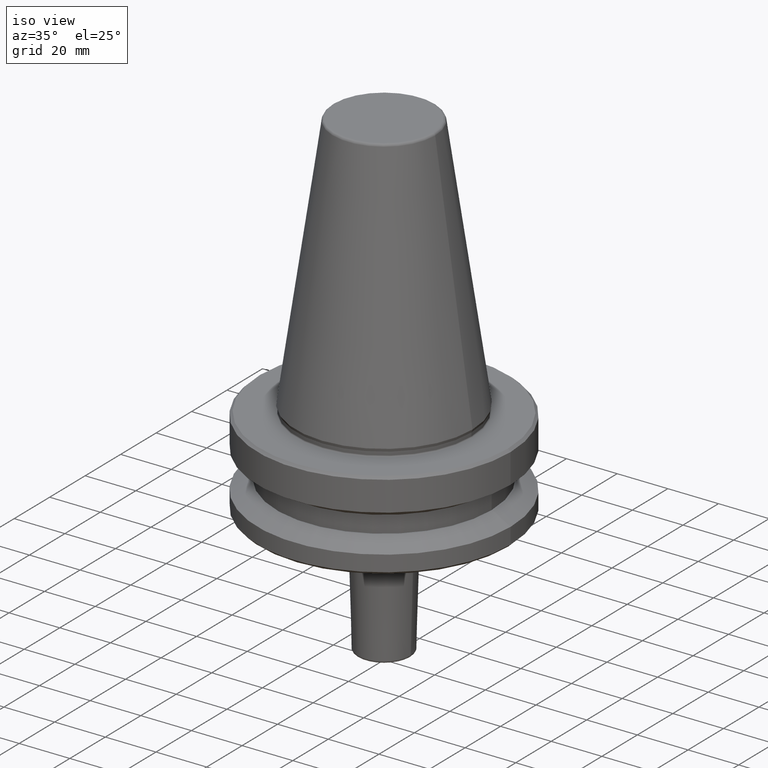
[diagram: clean part render]
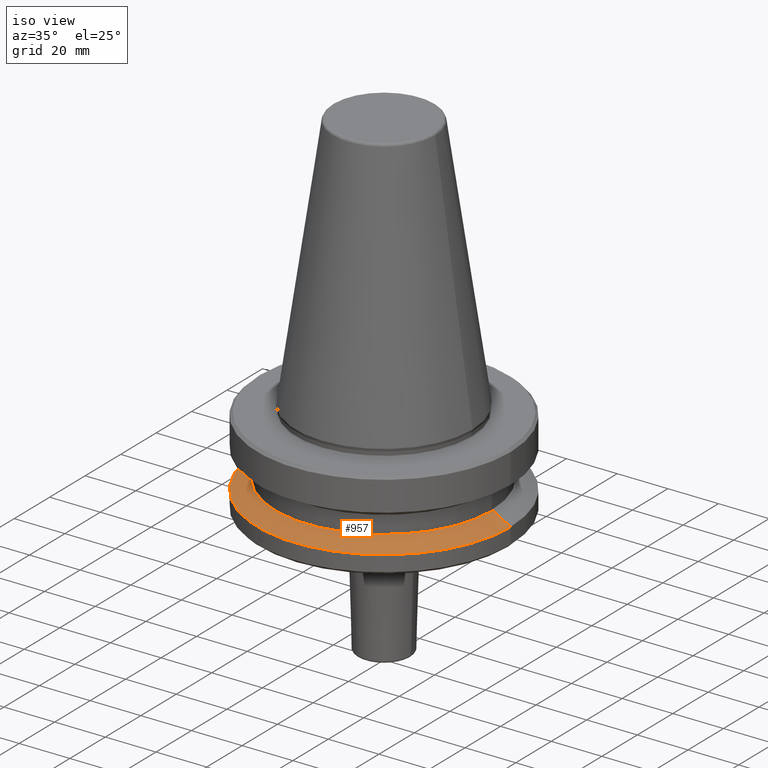
[diagram: same view with one face highlighted and labeled with its STEP entity id]
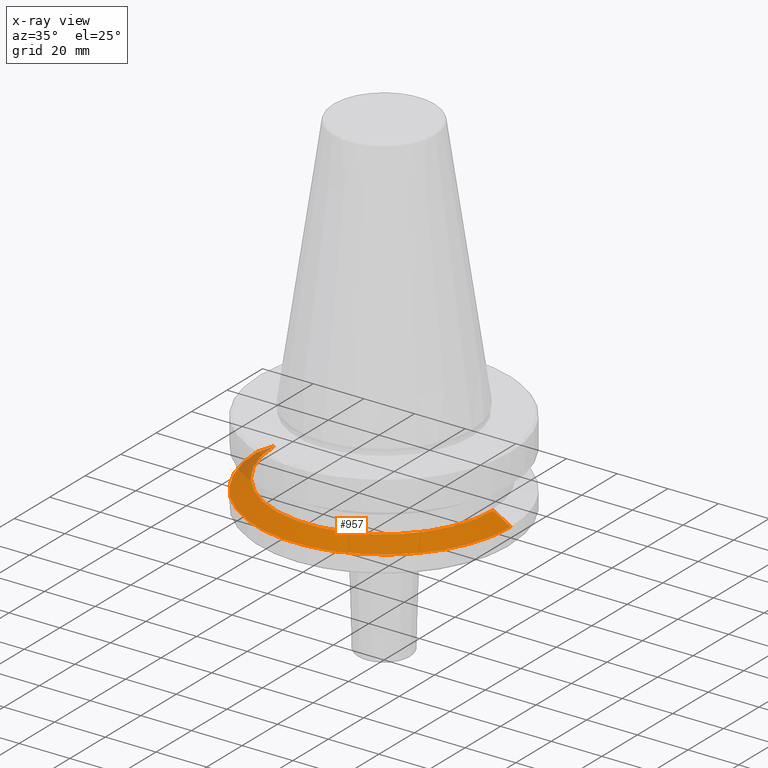
[diagram: x-ray of the same camera — body ghosted, the highlighted face saturated]
A machine part, iso view. The second image highlights one B-rep face of the part: STEP entity #957.
The next image is the same camera in x-ray: the body ghosted, the highlighted face saturated — about 5% of this face is hidden behind the body in this view.
In plain terms, the highlighted conical surface has half-angle 60 deg.
Its self-contained STEP definition (entity closure, byte-faithful):
#12 = ORIENTED_EDGE ( 'NONE', *, *, #382, .F. ) ;
#50 = AXIS2_PLACEMENT_3D ( 'NONE', #178, #736, #259 ) ;
#63 = CARTESIAN_POINT ( 'NONE',  ( 50.00000000000000000, 6.123233995736766100E-015, -30.69977999677324500 ) ) ;
#90 = CONICAL_SURFACE ( 'NONE', #99, 50.00000000000000000, 1.047197551196597200 ) ;
#99 = AXIS2_PLACEMENT_3D ( 'NONE', #477, #924, #788 ) ;
#103 = LINE ( 'NONE', #605, #723 ) ;
#112 = CARTESIAN_POINT ( 'NONE',  ( 50.00000000000000000, 0.0000000000000000000, -30.69977999677324500 ) ) ;
#113 = FACE_OUTER_BOUND ( 'NONE', #773, .T. ) ;
#126 = CARTESIAN_POINT ( 'NONE',  ( -50.00000000000000000, 6.123233995736766100E-015, -30.69977999677324500 ) ) ;
#178 = CARTESIAN_POINT ( 'NONE',  ( 0.0000000000000000000, 0.0000000000000000000, -30.69977999677324500 ) ) ;
#199 = CIRCLE ( 'NONE', #611, 43.07217782649105000 ) ;
#223 = CARTESIAN_POINT ( 'NONE',  ( -43.07217782649105000, 0.0000000000000000000, -26.69999999999998900 ) ) ;
#259 = DIRECTION ( 'NONE',  ( 1.000000000000000000, 0.0000000000000000000, 0.0000000000000000000 ) ) ;
#286 = DIRECTION ( 'NONE',  ( 1.000000000000000000, 0.0000000000000000000, 0.0000000000000000000 ) ) ;
#290 = VERTEX_POINT ( 'NONE', #949 ) ;
#382 = EDGE_CURVE ( 'NONE', #841, #290, #199, .T. ) ;
#413 = ORIENTED_EDGE ( 'NONE', *, *, #490, .T. ) ;
#461 = DIRECTION ( 'NONE',  ( -0.0000000000000000000, -0.0000000000000000000, 1.000000000000000000 ) ) ;
#473 = ORIENTED_EDGE ( 'NONE', *, *, #879, .F. ) ;
#477 = CARTESIAN_POINT ( 'NONE',  ( 0.0000000000000000000, 0.0000000000000000000, -30.69977999677324500 ) ) ;
#490 = EDGE_CURVE ( 'NONE', #748, #613, #537, .T. ) ;
#537 = CIRCLE ( 'NONE', #50, 50.00000000000000000 ) ;
#569 = CARTESIAN_POINT ( 'NONE',  ( 0.0000000000000000000, 0.0000000000000000000, -26.69999999999998900 ) ) ;
#605 = CARTESIAN_POINT ( 'NONE',  ( -50.00000000000000000, 0.0000000000000000000, -30.69977999677324500 ) ) ;
#611 = AXIS2_PLACEMENT_3D ( 'NONE', #569, #461, #286 ) ;
#613 = VERTEX_POINT ( 'NONE', #112 ) ;
#632 = EDGE_CURVE ( 'NONE', #841, #748, #103, .T. ) ;
#672 = ORIENTED_EDGE ( 'NONE', *, *, #632, .T. ) ;
#683 = DIRECTION ( 'NONE',  ( -0.8660254037844383700, 0.0000000000000000000, -0.5000000000000004400 ) ) ;
#723 = VECTOR ( 'NONE', #683, 1000.000000000000000 ) ;
#736 = DIRECTION ( 'NONE',  ( -0.0000000000000000000, -0.0000000000000000000, 1.000000000000000000 ) ) ;
#748 = VERTEX_POINT ( 'NONE', #126 ) ;
#773 = EDGE_LOOP ( 'NONE', ( #473, #12, #672, #413 ) ) ;
#778 = VECTOR ( 'NONE', #854, 1000.000000000000000 ) ;
#788 = DIRECTION ( 'NONE',  ( -1.000000000000000000, 0.0000000000000000000, 0.0000000000000000000 ) ) ;
#841 = VERTEX_POINT ( 'NONE', #223 ) ;
#854 = DIRECTION ( 'NONE',  ( 0.8660254037844383700, 1.060575238724906500E-016, -0.5000000000000004400 ) ) ;
#879 = EDGE_CURVE ( 'NONE', #290, #613, #970, .T. ) ;
#924 = DIRECTION ( 'NONE',  ( 0.0000000000000000000, 0.0000000000000000000, -1.000000000000000000 ) ) ;
#949 = CARTESIAN_POINT ( 'NONE',  ( 43.07217782649105000, 5.699027233244276800E-015, -26.69999999999998900 ) ) ;
#957 = ADVANCED_FACE ( 'NONE', ( #113 ), #90, .T. ) ;
#970 = LINE ( 'NONE', #63, #778 ) ;